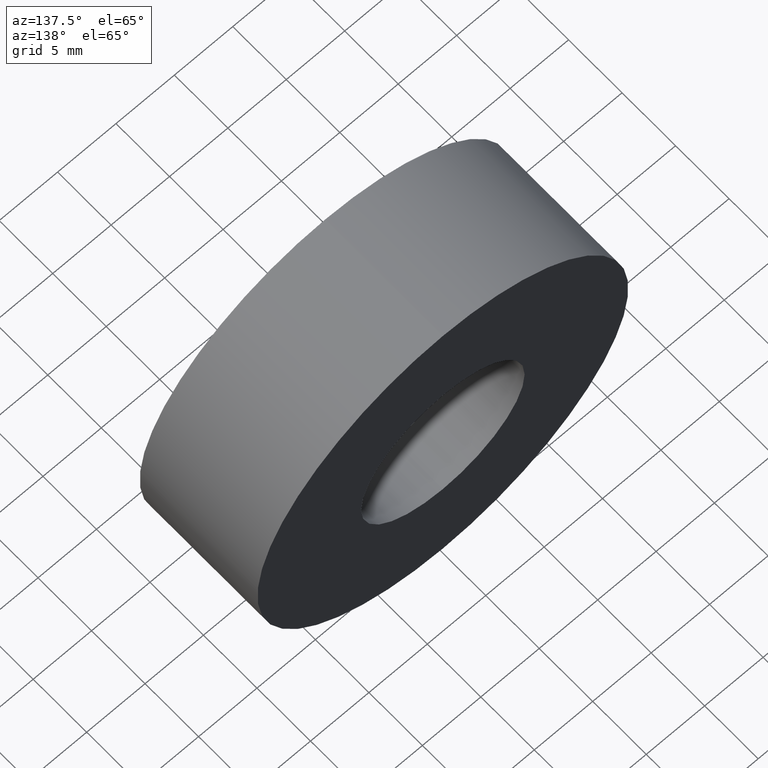
[diagram: clean part render]
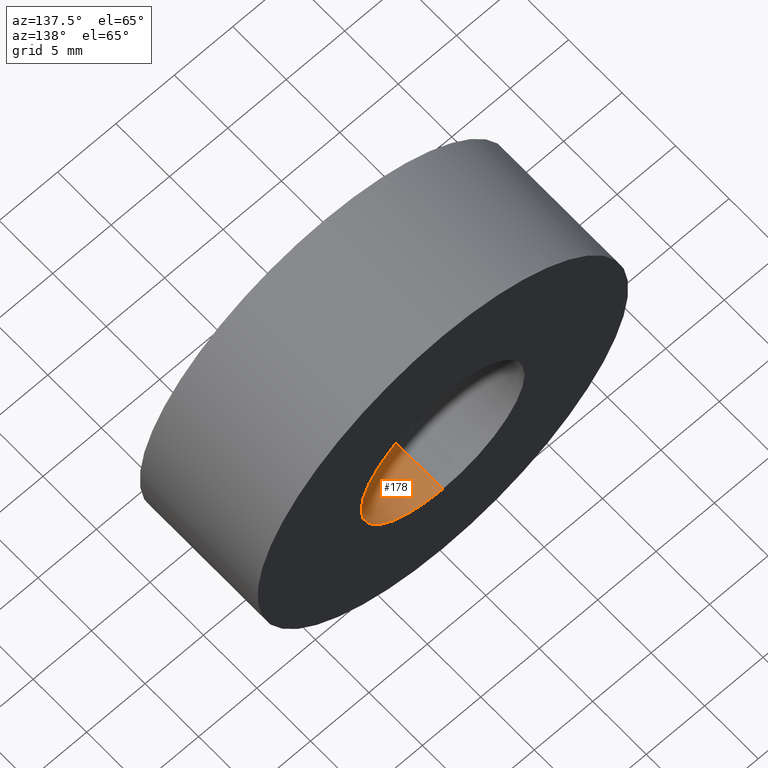
[diagram: same view with one face highlighted and labeled with its STEP entity id]
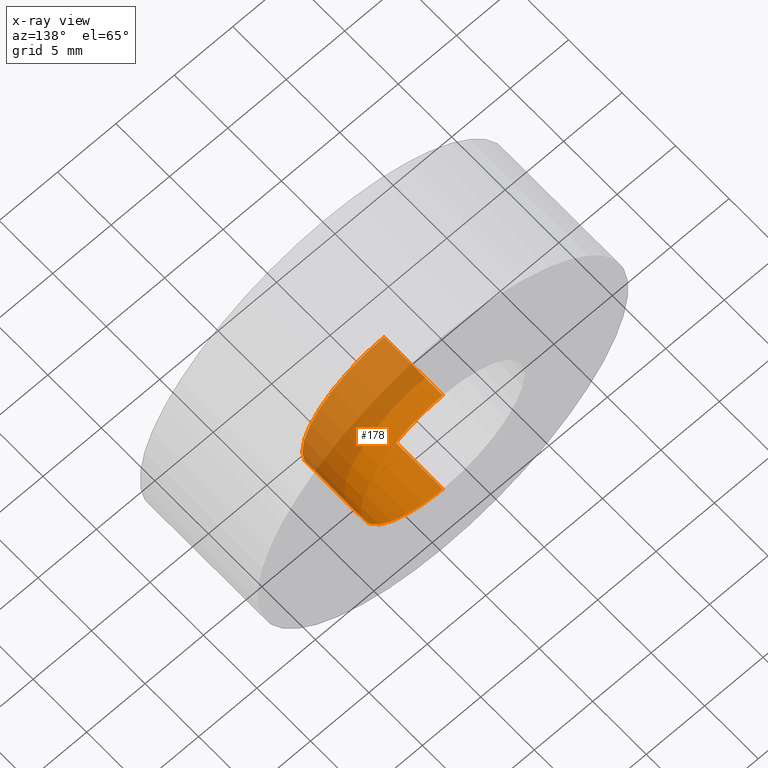
[diagram: x-ray of the same camera — body ghosted, the highlighted face saturated]
A machine part, auxiliary view. The second image highlights one B-rep face of the part: STEP entity #178.
The next image is the same camera in x-ray: the body ghosted, the highlighted face saturated — about 53% of this face is hidden behind the body in this view.
In plain terms, the highlighted cylindrical surface (partial cylindrical patch) has radius 7 mm, axis along (-0, 1, -0).
Its self-contained STEP definition (entity closure, byte-faithful):
#12 = EDGE_CURVE ( 'NONE', #278, #142, #245, .T. ) ;
#53 = VECTOR ( 'NONE', #188, 1000.000000000000000 ) ;
#81 = ORIENTED_EDGE ( 'NONE', *, *, #12, .F. ) ;
#110 = ORIENTED_EDGE ( 'NONE', *, *, #328, .F. ) ;
#131 = CARTESIAN_POINT ( 'NONE',  ( 0.0000000000000000000, 60.02082041425541100, 7.000000000000006200 ) ) ;
#142 = VERTEX_POINT ( 'NONE', #262 ) ;
#145 = LINE ( 'NONE', #131, #53 ) ;
#167 = DIRECTION ( 'NONE',  ( 0.0000000000000000000, 0.0000000000000000000, 1.000000000000000000 ) ) ;
#172 = CARTESIAN_POINT ( 'NONE',  ( 0.0000000000000000000, 10.99999999999999600, 0.0000000000000000000 ) ) ;
#178 = ADVANCED_FACE ( 'NONE', ( #221 ), #209, .F. ) ;
#179 = CIRCLE ( 'NONE', #200, 7.000000000000006200 ) ;
#188 = DIRECTION ( 'NONE',  ( -0.0000000000000000000, 1.000000000000000000, -0.0000000000000000000 ) ) ;
#199 = DIRECTION ( 'NONE',  ( -0.0000000000000000000, 1.000000000000000000, -0.0000000000000000000 ) ) ;
#200 = AXIS2_PLACEMENT_3D ( 'NONE', #298, #199, #366 ) ;
#209 = CYLINDRICAL_SURFACE ( 'NONE', #238, 7.000000000000006200 ) ;
#212 = CIRCLE ( 'NONE', #339, 7.000000000000007100 ) ;
#221 = FACE_OUTER_BOUND ( 'NONE', #249, .T. ) ;
#238 = AXIS2_PLACEMENT_3D ( 'NONE', #292, #408, #290 ) ;
#245 = LINE ( 'NONE', #405, #430 ) ;
#249 = EDGE_LOOP ( 'NONE', ( #81, #110, #384, #270 ) ) ;
#262 = CARTESIAN_POINT ( 'NONE',  ( 8.572527594031482100E-016, 10.99999999999999600, -7.000000000000008000 ) ) ;
#265 = EDGE_CURVE ( 'NONE', #312, #142, #212, .T. ) ;
#270 = ORIENTED_EDGE ( 'NONE', *, *, #265, .T. ) ;
#278 = VERTEX_POINT ( 'NONE', #341 ) ;
#290 = DIRECTION ( 'NONE',  ( 0.0000000000000000000, 0.0000000000000000000, 1.000000000000000000 ) ) ;
#292 = CARTESIAN_POINT ( 'NONE',  ( 0.0000000000000000000, 60.02082041425541100, 0.0000000000000000000 ) ) ;
#298 = CARTESIAN_POINT ( 'NONE',  ( 0.0000000000000000000, 5.499999999999998200, 0.0000000000000000000 ) ) ;
#308 = DIRECTION ( 'NONE',  ( -0.0000000000000000000, 1.000000000000000000, -0.0000000000000000000 ) ) ;
#312 = VERTEX_POINT ( 'NONE', #379 ) ;
#313 = CARTESIAN_POINT ( 'NONE',  ( 0.0000000000000000000, 5.499999999999998200, 7.000000000000006200 ) ) ;
#323 = EDGE_CURVE ( 'NONE', #386, #312, #145, .T. ) ;
#328 = EDGE_CURVE ( 'NONE', #386, #278, #179, .T. ) ;
#339 = AXIS2_PLACEMENT_3D ( 'NONE', #172, #410, #167 ) ;
#341 = CARTESIAN_POINT ( 'NONE',  ( 8.572527594031480100E-016, 5.499999999999998200, -7.000000000000006200 ) ) ;
#366 = DIRECTION ( 'NONE',  ( 0.0000000000000000000, 0.0000000000000000000, 1.000000000000000000 ) ) ;
#379 = CARTESIAN_POINT ( 'NONE',  ( 0.0000000000000000000, 10.99999999999999600, 7.000000000000007100 ) ) ;
#384 = ORIENTED_EDGE ( 'NONE', *, *, #323, .T. ) ;
#386 = VERTEX_POINT ( 'NONE', #313 ) ;
#405 = CARTESIAN_POINT ( 'NONE',  ( 8.572527594031480100E-016, 60.02082041425541100, -7.000000000000006200 ) ) ;
#408 = DIRECTION ( 'NONE',  ( -0.0000000000000000000, 1.000000000000000000, -0.0000000000000000000 ) ) ;
#410 = DIRECTION ( 'NONE',  ( -0.0000000000000000000, 1.000000000000000000, -0.0000000000000000000 ) ) ;
#430 = VECTOR ( 'NONE', #308, 1000.000000000000000 ) ;